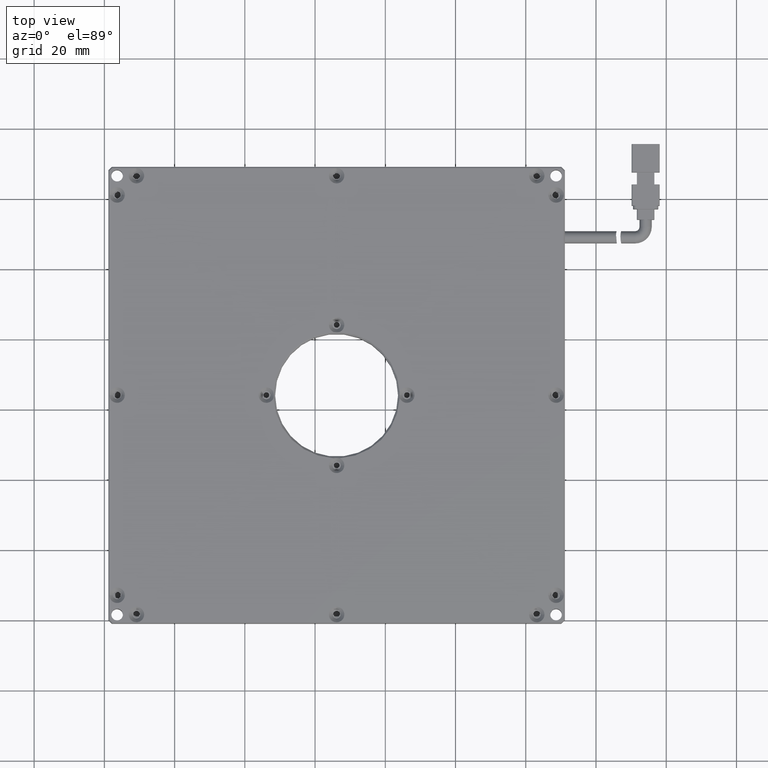
[diagram: clean part render]
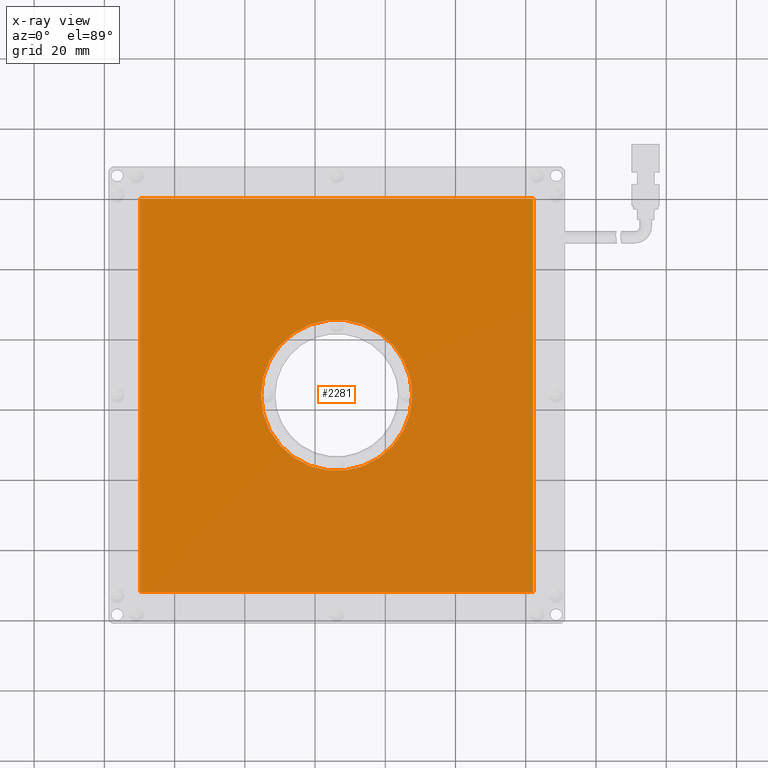
[diagram: x-ray — body ghosted, one internal face saturated and labeled with its STEP entity id]
A machine part, top view, then the same camera in x-ray: the body is ghosted and one INTERNAL B-rep face — a face not visible from any outside direction — is saturated and labeled: STEP entity #2281.
In plain terms, the highlighted planar face has unit normal (0, 0, -1).
Its self-contained STEP definition (entity closure, byte-faithful):
#93 = VERTEX_POINT ( 'NONE', #13306 ) ;
#573 = VECTOR ( 'NONE', #19910, 1000.000000000000000 ) ;
#681 = LINE ( 'NONE', #17904, #8251 ) ;
#1088 = CIRCLE ( 'NONE', #17107, 21.50000000000000000 ) ;
#2215 = FACE_BOUND ( 'NONE', #10647, .T. ) ;
#2228 = DIRECTION ( 'NONE',  ( -1.000000000000000000, 0.0000000000000000000, -0.0000000000000000000 ) ) ;
#2281 = ADVANCED_FACE ( 'NONE', ( #19611, #2215 ), #8513, .F. ) ;
#2288 = LINE ( 'NONE', #10474, #573 ) ;
#3613 = CARTESIAN_POINT ( 'NONE',  ( 26.12907407407411900, 24.05944444444444500, 2.000000000000000000 ) ) ;
#3734 = DIRECTION ( 'NONE',  ( 0.0000000000000000000, 1.000000000000000000, 0.0000000000000000000 ) ) ;
#3982 = CARTESIAN_POINT ( 'NONE',  ( 47.62907407407411900, 24.05944444444444800, 2.000000000000000000 ) ) ;
#3999 = CARTESIAN_POINT ( 'NONE',  ( -29.87092592592589200, -31.94055555555555500, 2.000000000000000000 ) ) ;
#4414 = LINE ( 'NONE', #3999, #7824 ) ;
#4505 = CARTESIAN_POINT ( 'NONE',  ( 82.12907407407411100, -31.94055555555555500, 2.000000000000000000 ) ) ;
#5083 = VERTEX_POINT ( 'NONE', #3982 ) ;
#5173 = DIRECTION ( 'NONE',  ( -1.000000000000000000, 0.0000000000000000000, 0.0000000000000000000 ) ) ;
#5433 = ORIENTED_EDGE ( 'NONE', *, *, #18022, .F. ) ;
#5440 = CARTESIAN_POINT ( 'NONE',  ( -29.87092592592589200, 80.05944444444445200, 2.000000000000000000 ) ) ;
#5639 = CARTESIAN_POINT ( 'NONE',  ( 26.12907407407411900, 24.05944444444444500, 2.000000000000000000 ) ) ;
#5915 = DIRECTION ( 'NONE',  ( -1.000000000000000000, 0.0000000000000000000, 0.0000000000000000000 ) ) ;
#6623 = CARTESIAN_POINT ( 'NONE',  ( 82.12907407407411100, 80.05944444444445200, 2.000000000000000000 ) ) ;
#6729 = VERTEX_POINT ( 'NONE', #12831 ) ;
#6897 = CARTESIAN_POINT ( 'NONE',  ( -29.87092592592589200, -31.94055555555555500, 2.000000000000000000 ) ) ;
#6987 = EDGE_CURVE ( 'NONE', #18717, #8781, #4414, .T. ) ;
#7824 = VECTOR ( 'NONE', #16523, 1000.000000000000000 ) ;
#8107 = DIRECTION ( 'NONE',  ( -0.0000000000000000000, -1.000000000000000000, -0.0000000000000000000 ) ) ;
#8251 = VECTOR ( 'NONE', #3734, 1000.000000000000000 ) ;
#8513 = PLANE ( 'NONE',  #9395 ) ;
#8781 = VERTEX_POINT ( 'NONE', #6897 ) ;
#9395 = AXIS2_PLACEMENT_3D ( 'NONE', #5440, #13054, #2228 ) ;
#10203 = EDGE_CURVE ( 'NONE', #93, #18717, #13460, .T. ) ;
#10367 = ORIENTED_EDGE ( 'NONE', *, *, #14730, .F. ) ;
#10474 = CARTESIAN_POINT ( 'NONE',  ( -29.87092592592589200, 80.05944444444445200, 2.000000000000000000 ) ) ;
#10647 = EDGE_LOOP ( 'NONE', ( #5433, #10367 ) ) ;
#11275 = ORIENTED_EDGE ( 'NONE', *, *, #18938, .F. ) ;
#11340 = AXIS2_PLACEMENT_3D ( 'NONE', #3613, #11577, #5173 ) ;
#11577 = DIRECTION ( 'NONE',  ( 0.0000000000000000000, 0.0000000000000000000, 1.000000000000000000 ) ) ;
#12060 = EDGE_CURVE ( 'NONE', #17316, #93, #2288, .T. ) ;
#12831 = CARTESIAN_POINT ( 'NONE',  ( 4.629074074074115000, 24.05944444444444500, 2.000000000000000000 ) ) ;
#13054 = DIRECTION ( 'NONE',  ( 0.0000000000000000000, 0.0000000000000000000, -1.000000000000000000 ) ) ;
#13075 = EDGE_LOOP ( 'NONE', ( #17499, #16001, #16043, #11275 ) ) ;
#13306 = CARTESIAN_POINT ( 'NONE',  ( 82.12907407407411100, 80.05944444444445200, 2.000000000000000000 ) ) ;
#13460 = LINE ( 'NONE', #6623, #17842 ) ;
#14156 = CIRCLE ( 'NONE', #11340, 21.50000000000000000 ) ;
#14730 = EDGE_CURVE ( 'NONE', #5083, #6729, #14156, .T. ) ;
#15256 = DIRECTION ( 'NONE',  ( 0.0000000000000000000, 0.0000000000000000000, 1.000000000000000000 ) ) ;
#15725 = CARTESIAN_POINT ( 'NONE',  ( -29.87092592592589200, 80.05944444444445200, 2.000000000000000000 ) ) ;
#16001 = ORIENTED_EDGE ( 'NONE', *, *, #10203, .F. ) ;
#16043 = ORIENTED_EDGE ( 'NONE', *, *, #12060, .F. ) ;
#16523 = DIRECTION ( 'NONE',  ( -1.000000000000000000, 0.0000000000000000000, -0.0000000000000000000 ) ) ;
#17107 = AXIS2_PLACEMENT_3D ( 'NONE', #5639, #15256, #5915 ) ;
#17316 = VERTEX_POINT ( 'NONE', #15725 ) ;
#17499 = ORIENTED_EDGE ( 'NONE', *, *, #6987, .F. ) ;
#17842 = VECTOR ( 'NONE', #8107, 1000.000000000000000 ) ;
#17904 = CARTESIAN_POINT ( 'NONE',  ( -29.87092592592589200, 80.05944444444445200, 2.000000000000000000 ) ) ;
#18022 = EDGE_CURVE ( 'NONE', #6729, #5083, #1088, .T. ) ;
#18717 = VERTEX_POINT ( 'NONE', #4505 ) ;
#18938 = EDGE_CURVE ( 'NONE', #8781, #17316, #681, .T. ) ;
#19611 = FACE_OUTER_BOUND ( 'NONE', #13075, .T. ) ;
#19910 = DIRECTION ( 'NONE',  ( 1.000000000000000000, -0.0000000000000000000, 0.0000000000000000000 ) ) ;